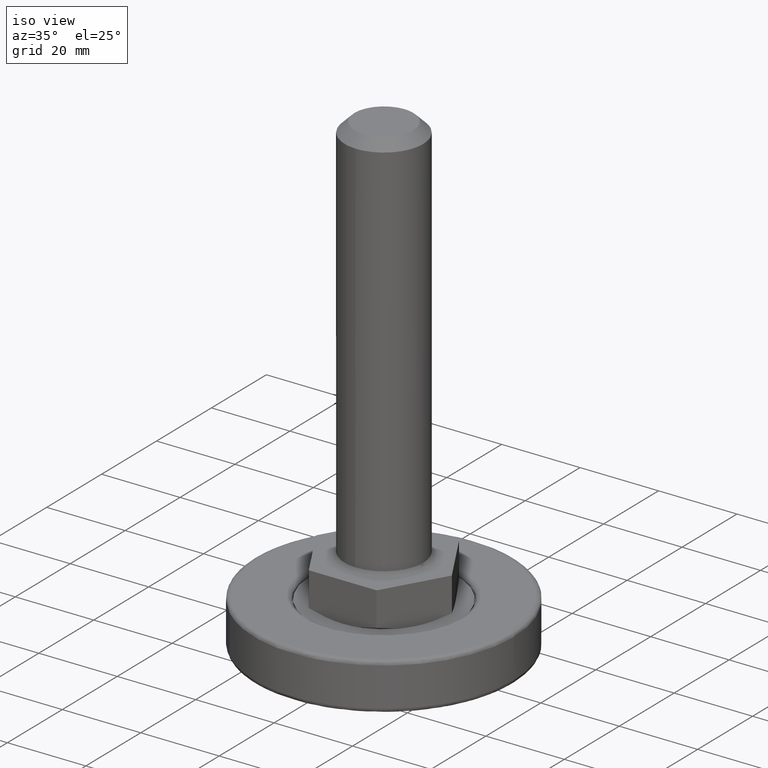
[diagram: clean part render]
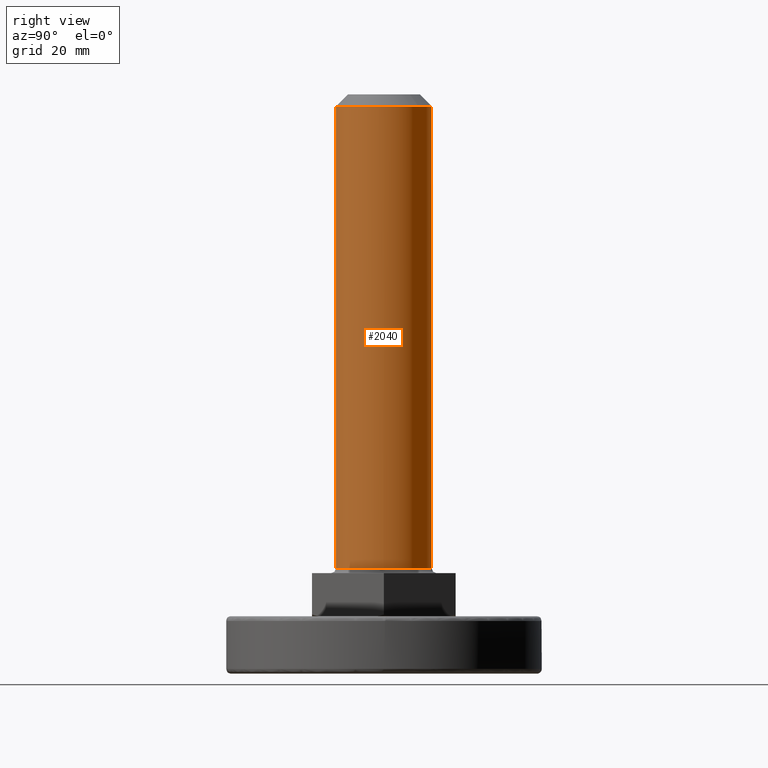
[diagram: tour spotlight — one face highlighted and labeled with its STEP entity id]
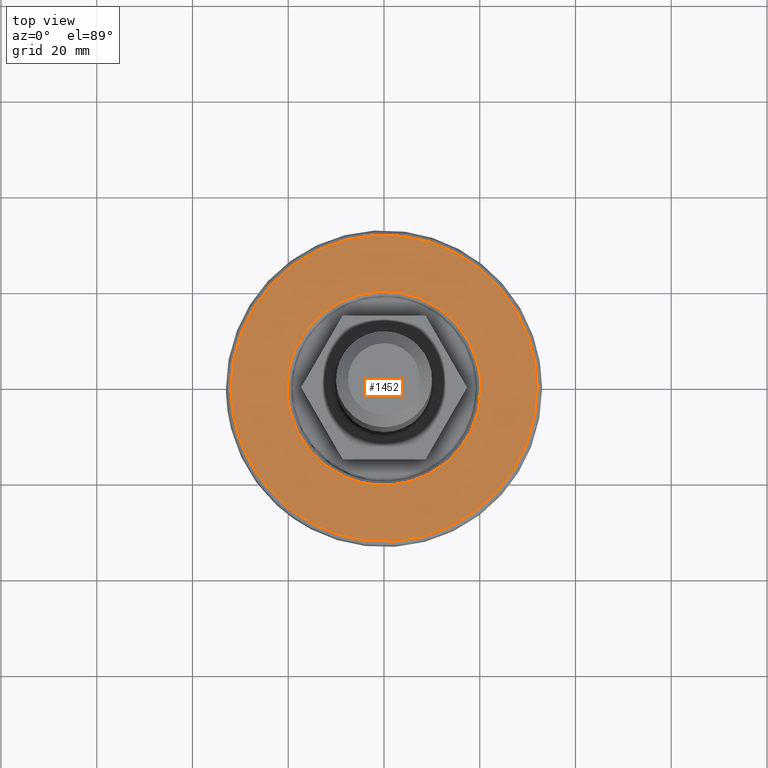
[diagram: tour spotlight — one face highlighted and labeled with its STEP entity id]
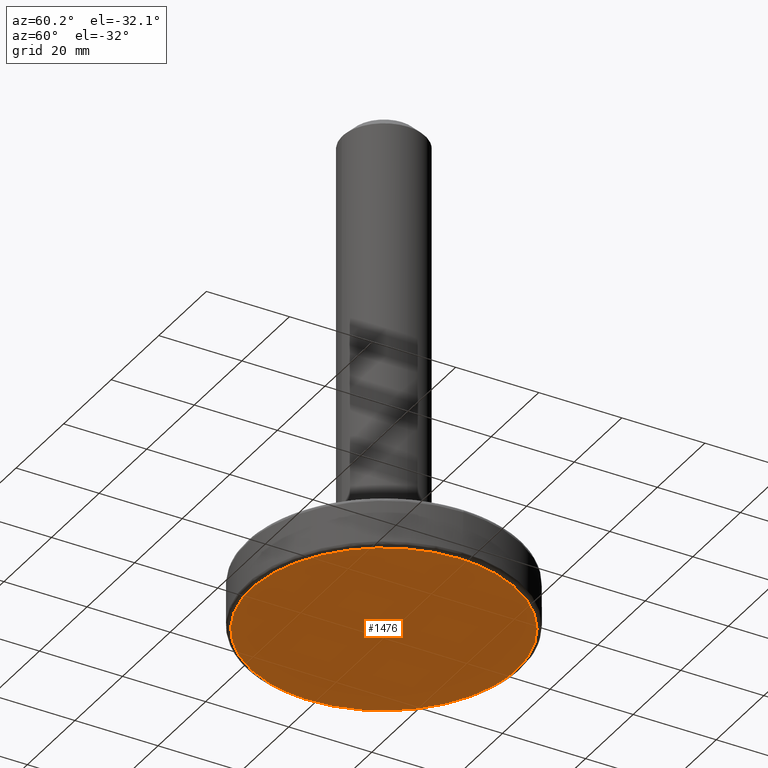
[diagram: tour spotlight — one face highlighted and labeled with its STEP entity id]
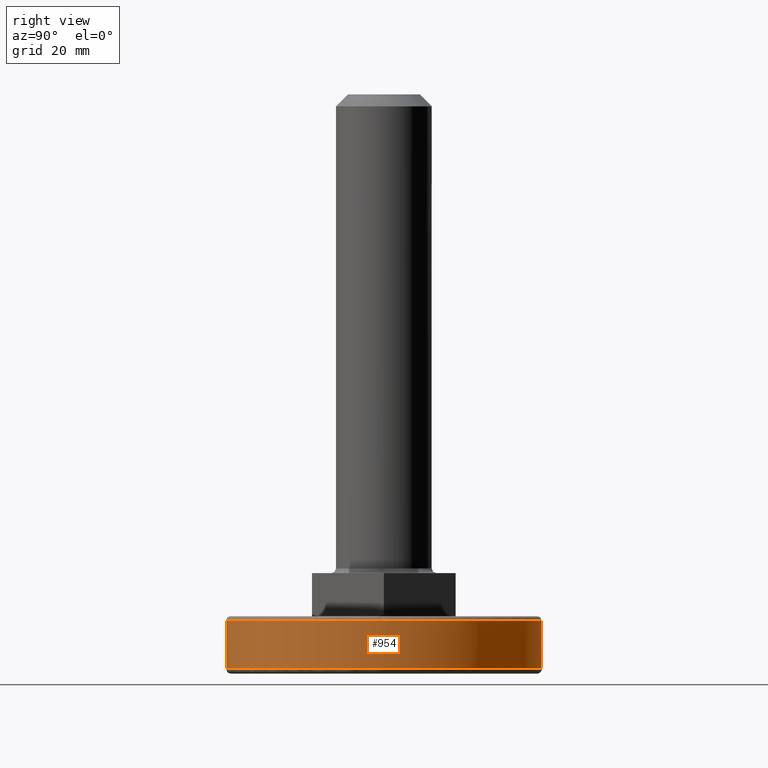
[diagram: tour spotlight — one face highlighted and labeled with its STEP entity id]
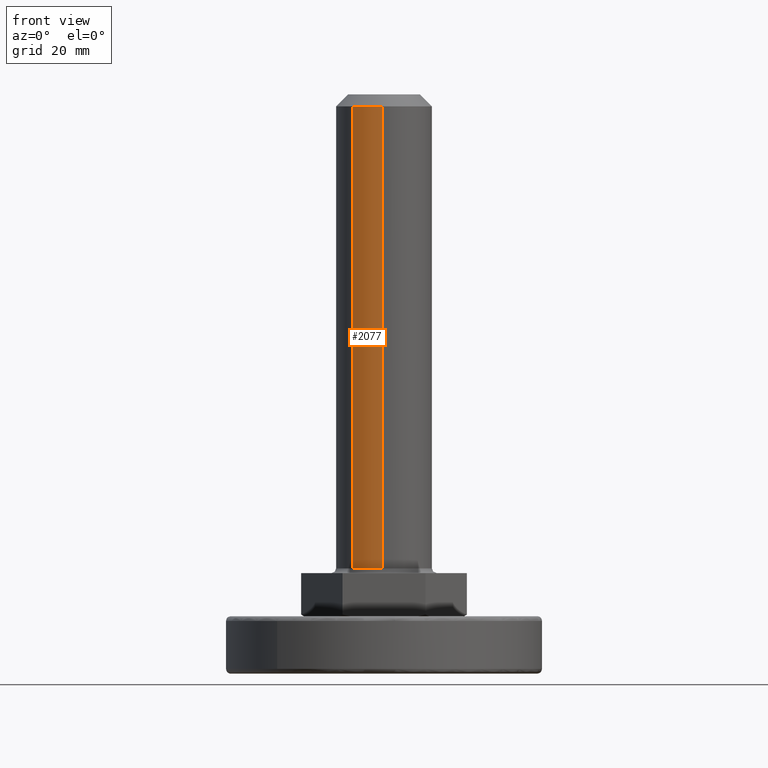
[diagram: tour spotlight — one face highlighted and labeled with its STEP entity id]
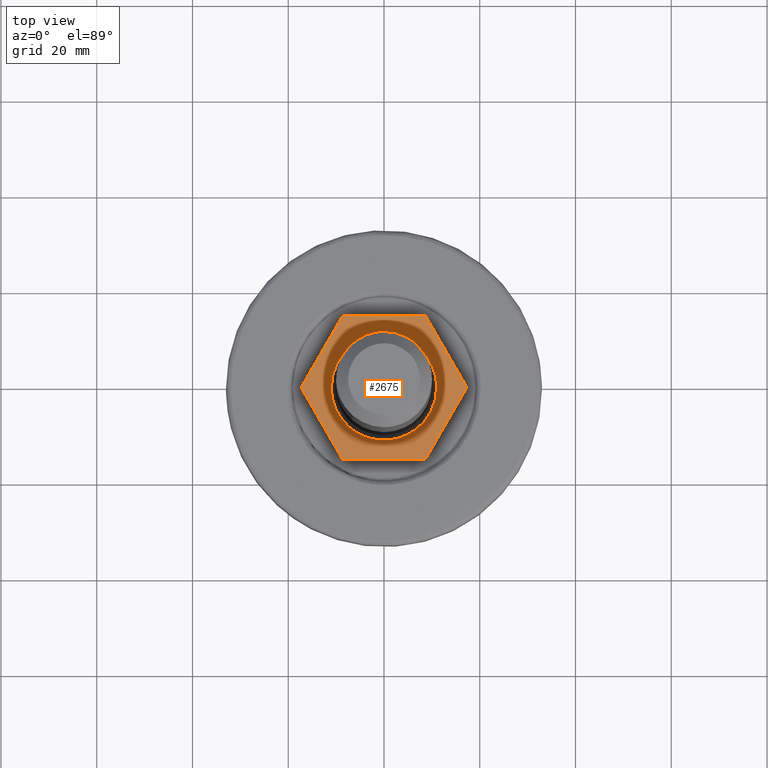
[diagram: tour spotlight — one face highlighted and labeled with its STEP entity id]
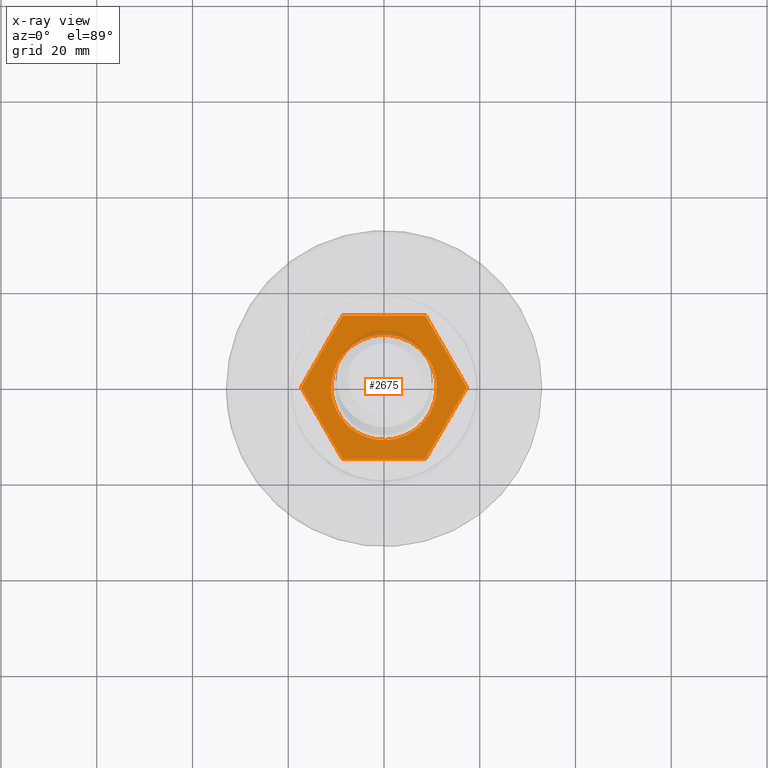
[diagram: x-ray of the same camera — body ghosted, this tour face saturated]
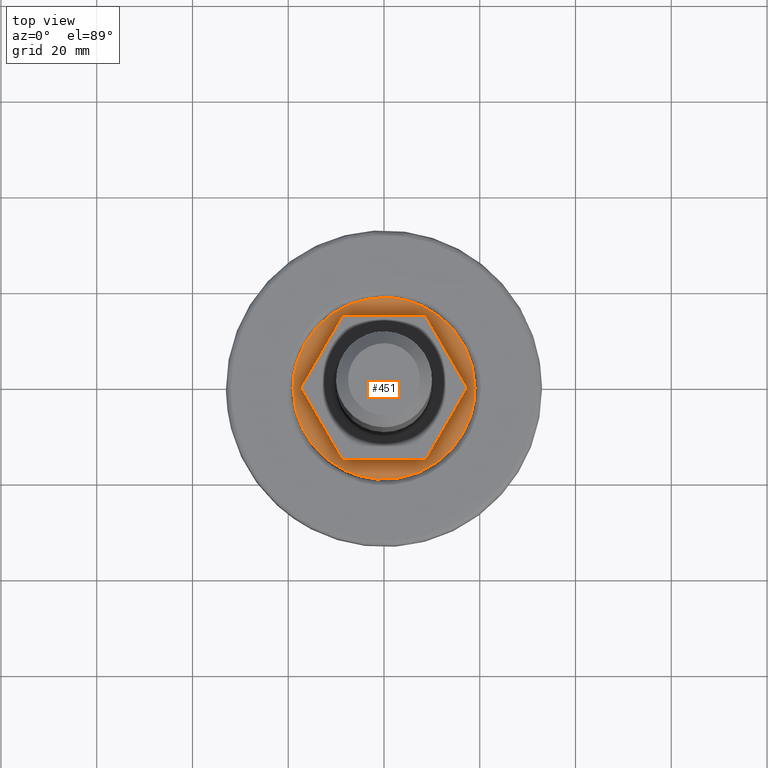
[diagram: tour spotlight — one face highlighted and labeled with its STEP entity id]
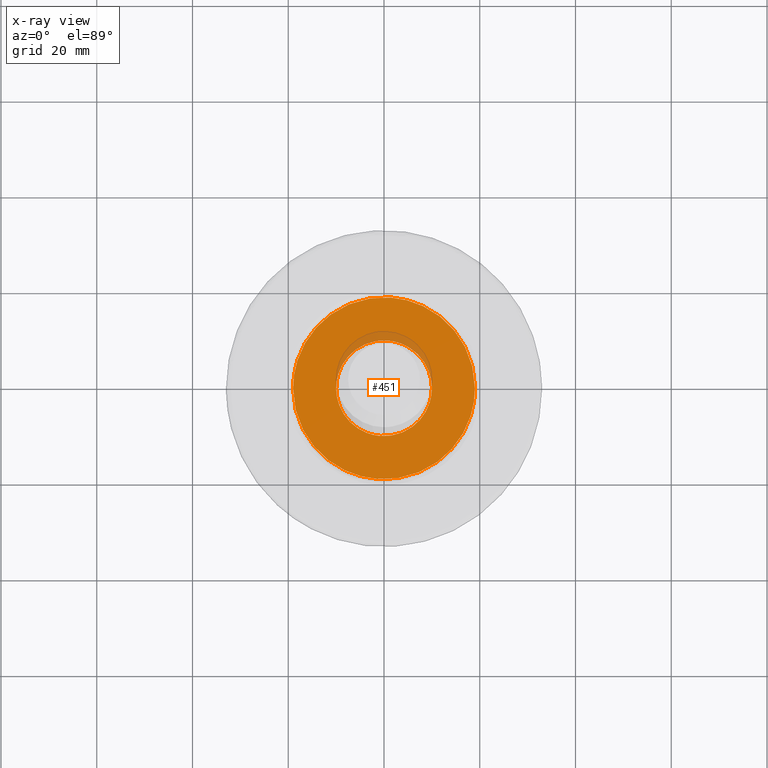
[diagram: x-ray of the same camera — body ghosted, this tour face saturated]
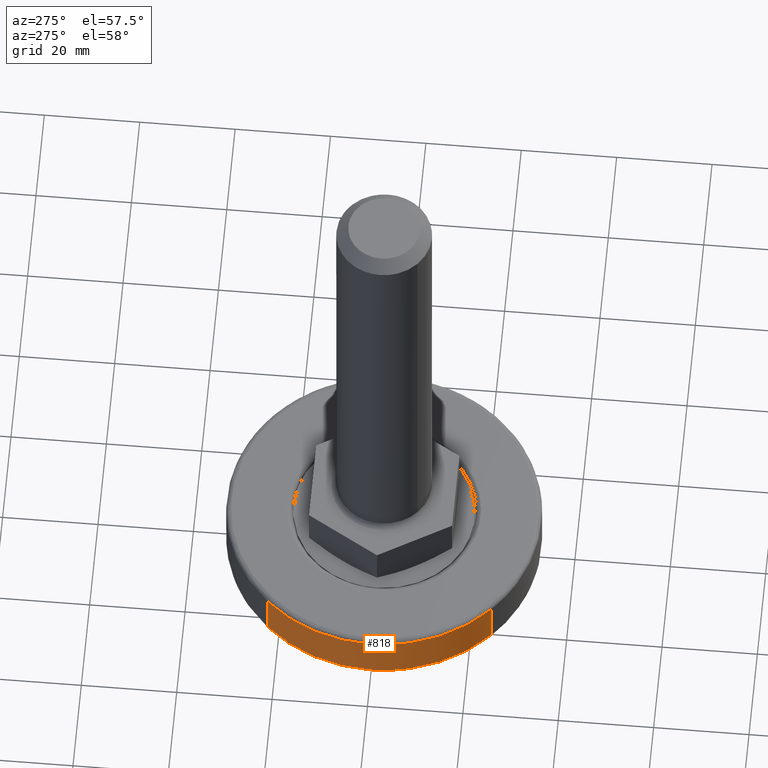
[diagram: tour spotlight — one face highlighted and labeled with its STEP entity id]
A machine part: a face-by-face anatomy tour. The part has 43 B-rep faces; the first image is the clean iso view, then the 8 largest visible faces are spotlighted one at a time (largest first), each with its STEP entity span.

Face 1 — right view, entity #2040. In plain terms, the highlighted face is a freeform B-spline surface patch.
Definition (entity closure, byte-faithful):
#1777=CARTESIAN_POINT('',(0.087265355389125,9.999619230693483,118.499999999944710));
#1778=VERTEX_POINT('',#1777);
#1784=CARTESIAN_POINT('',(-10.0,0.0,118.500000000000000));
#1785=VERTEX_POINT('',#1784);
#1786=CARTESIAN_POINT('',(-10.0,0.0,118.500000000000000));
#1787=CARTESIAN_POINT('',(-10.000000000000002,10.000000000000002,118.500000000000000));
#1788=CARTESIAN_POINT('',(0.0,10.0,118.500000000000000));
#1789=CARTESIAN_POINT('',(0.043633508611914,10.000000000000002,118.499999999999960));
#1790=CARTESIAN_POINT('',(0.087265355389125,9.999619230693483,118.499999999944730));
#1798=(BOUNDED_CURVE()B_SPLINE_CURVE(2,(#1786,#1787,#1788,#1789,#1790),.UNSPECIFIED.,.F.,.U.)B_SPLINE_CURVE_WITH_KNOTS((3,2,3),(0.500000000000000,0.750000000000000,0.751539894349251),.UNSPECIFIED.)CURVE()GEOMETRIC_REPRESENTATION_ITEM()RATIONAL_B_SPLINE_CURVE((1.0,0.707106781186548,1.0,0.998195901549661,0.996414028067396))REPRESENTATION_ITEM(''));
#1799=EDGE_CURVE('',#1785,#1778,#1798,.T.);
#1801=CARTESIAN_POINT('',(-6.535372859406683,-7.568943227989572,118.500000000000000));
#1802=VERTEX_POINT('',#1801);
#1803=CARTESIAN_POINT('',(-6.535372859406727,-7.568943227989622,118.500000000000070));
#1804=CARTESIAN_POINT('',(-10.0,-4.577425191645294,118.500000000000010));
#1805=CARTESIAN_POINT('',(-10.0,0.0,118.500000000000000));
#1813=(BOUNDED_CURVE()B_SPLINE_CURVE(2,(#1803,#1804,#1805),.UNSPECIFIED.,.F.,.U.)B_SPLINE_CURVE_WITH_KNOTS((3,3),(0.363957641356964,0.500000000000000),.UNSPECIFIED.)CURVE()GEOMETRIC_REPRESENTATION_ITEM()RATIONAL_B_SPLINE_CURVE((0.854696224171070,0.840616462728268,1.0))REPRESENTATION_ITEM(''));
#1814=EDGE_CURVE('',#1802,#1785,#1813,.T.);
#1816=CARTESIAN_POINT('',(-0.261755488294605,-9.996573616202285,118.500000000000000));
#1817=VERTEX_POINT('',#1816);
#1831=CARTESIAN_POINT('',(10.0,0.0,118.500000000000000));
#1832=VERTEX_POINT('',#1831);
#1833=CARTESIAN_POINT('',(10.0,0.0,118.500000000000000));
#1834=CARTESIAN_POINT('',(10.000000000000002,-10.000000000000002,118.500000000000000));
#1835=CARTESIAN_POINT('',(0.0,-10.0,118.500000000000000));
#1836=CARTESIAN_POINT('',(-0.130900169858422,-10.0,118.499999999999970));
#1837=CARTESIAN_POINT('',(-0.261755488294605,-9.996573616202285,118.500000000000060));
#1845=(BOUNDED_CURVE()B_SPLINE_CURVE(2,(#1833,#1834,#1835,#1836,#1837),.UNSPECIFIED.,.F.,.U.)B_SPLINE_CURVE_WITH_KNOTS((3,2,3),(0.0,0.250000000000000,0.254603061799192),.UNSPECIFIED.)CURVE()GEOMETRIC_REPRESENTATION_ITEM()RATIONAL_B_SPLINE_CURVE((1.0,0.707106781186548,1.0,0.994607177652950,0.989412943262184))REPRESENTATION_ITEM(''));
#1846=EDGE_CURVE('',#1832,#1817,#1845,.T.);
#1848=CARTESIAN_POINT('',(6.896392427850937,7.241531017753263,118.499999999999900));
#1849=VERTEX_POINT('',#1848);
#1850=CARTESIAN_POINT('',(6.896392427850937,7.241531017753262,118.499999999999940));
#1851=CARTESIAN_POINT('',(10.0,4.285844477547040,118.500000000000030));
#1852=CARTESIAN_POINT('',(10.0,0.0,118.500000000000000));
#1860=(BOUNDED_CURVE()B_SPLINE_CURVE(2,(#1850,#1851,#1852),.UNSPECIFIED.,.F.,.U.)B_SPLINE_CURVE_WITH_KNOTS((3,3),(0.871317023849989,1.0),.UNSPECIFIED.)CURVE()GEOMETRIC_REPRESENTATION_ITEM()RATIONAL_B_SPLINE_CURVE((0.853680523245746,0.849238515635715,1.0))REPRESENTATION_ITEM(''));
#1861=EDGE_CURVE('',#1849,#1832,#1860,.T.);
#1899=CARTESIAN_POINT('',(0.087265355389125,9.999619230693483,118.499999999944690));
#1900=CARTESIAN_POINT('',(4.036461148000346,9.965155120756391,118.500000000000040));
#1901=CARTESIAN_POINT('',(6.896392427850937,7.241531017753262,118.499999999999940));
#1909=(BOUNDED_CURVE()B_SPLINE_CURVE(2,(#1899,#1900,#1901),.UNSPECIFIED.,.F.,.U.)B_SPLINE_CURVE_WITH_KNOTS((3,3),(0.751539894349252,0.871317023849990),.UNSPECIFIED.)CURVE()GEOMETRIC_REPRESENTATION_ITEM()RATIONAL_B_SPLINE_CURVE((0.996414028067393,0.857815109938314,0.853680523245746))REPRESENTATION_ITEM(''));
#1910=EDGE_CURVE('',#1778,#1849,#1909,.T.);
#1916=CARTESIAN_POINT('',(-6.535373713046962,-7.568942490917386,120.912500000001460));
#1917=CARTESIAN_POINT('',(-10.120565991214493,-4.473322277251954,120.912500000001390));
#1918=CARTESIAN_POINT('',(-9.996573249755569,0.261769483078735,120.912500000001400));
#1919=CARTESIAN_POINT('',(-9.734803766676833,10.258342732834304,120.912500000001430));
#1920=CARTESIAN_POINT('',(0.261769483078735,9.996573249755569,120.912500000001400));
#1921=CARTESIAN_POINT('',(10.258342732834304,9.734803766676833,120.912500000001430));
#1922=CARTESIAN_POINT('',(9.996573249755569,-0.261769483078735,120.912500000001400));
#1923=CARTESIAN_POINT('',(9.734803766676833,-10.258342732834304,120.912500000001430));
#1924=CARTESIAN_POINT('',(-0.261769483078735,-9.996573249755569,120.912500000001400));
#1925=CARTESIAN_POINT('',(-6.535373713046962,-7.568942490917386,19.527187499942411));
#1926=CARTESIAN_POINT('',(-10.120565991214493,-4.473322277251954,19.527187499942421));
#1927=CARTESIAN_POINT('',(-9.996573249755569,0.261769483078735,19.527187499942411));
#1928=CARTESIAN_POINT('',(-9.734803766676833,10.258342732834304,19.527187499942418));
#1929=CARTESIAN_POINT('',(0.261769483078735,9.996573249755569,19.527187499942411));
#1930=CARTESIAN_POINT('',(10.258342732834304,9.734803766676833,19.527187499942418));
#1931=CARTESIAN_POINT('',(9.996573249755569,-0.261769483078735,19.527187499942411));
#1932=CARTESIAN_POINT('',(9.734803766676833,-10.258342732834304,19.527187499942418));
#1933=CARTESIAN_POINT('',(-0.261769483078735,-9.996573249755569,19.527187499942411));
#1941=(BOUNDED_SURFACE()B_SPLINE_SURFACE(2,1,((#1916,#1925),(#1917,#1926),(#1918,#1927),(#1919,#1928),(#1920,#1929),(#1921,#1930),(#1922,#1931),(#1923,#1932),(#1924,#1933)),.UNSPECIFIED.,.F.,.F.,.U.)B_SPLINE_SURFACE_WITH_KNOTS((3,2,2,2,3),(2,2),(0.0,9.278383797157327,25.846926292081129,42.415468787004933,58.984011281928723),(0.0,101.385312500059000),.UNSPECIFIED.)GEOMETRIC_REPRESENTATION_ITEM()RATIONAL_B_SPLINE_SURFACE(((0.855662221768731,0.855662221768731),(0.835979797464467,0.835979797464467),(1.0,1.0),(0.707106781186548,0.707106781186548),(1.0,1.0),(0.707106781186548,0.707106781186548),(1.0,1.0),(0.707106781186548,0.707106781186548),(1.0,1.0)))REPRESENTATION_ITEM('')SURFACE());
#1942=CARTESIAN_POINT('',(-10.0,0.0,22.0));
#1943=VERTEX_POINT('',#1942);
#1944=CARTESIAN_POINT('',(-6.535371926124537,-7.568944033827813,22.000000000000011));
#1945=VERTEX_POINT('',#1944);
#1946=CARTESIAN_POINT('',(-10.0,0.0,22.0));
#1947=CARTESIAN_POINT('',(-10.0,-4.577425937344430,22.0));
#1948=CARTESIAN_POINT('',(-6.535371926124537,-7.568944033827813,22.000000000000004));
#1956=(BOUNDED_CURVE()B_SPLINE_CURVE(2,(#1946,#1947,#1948),.UNSPECIFIED.,.F.,.U.)B_SPLINE_CURVE_WITH_KNOTS((3,3),(0.500000000000000,0.636042377273103),.UNSPECIFIED.)CURVE()GEOMETRIC_REPRESENTATION_ITEM()RATIONAL_B_SPLINE_CURVE((1.0,0.840616440901787,0.854696228027326))REPRESENTATION_ITEM(''));
#1957=EDGE_CURVE('',#1943,#1945,#1956,.T.);
#1958=ORIENTED_EDGE('',*,*,#1957,.T.);
#1959=CARTESIAN_POINT('',(-6.535372859406683,-7.568943227989572,118.500000000000000));
#1960=CARTESIAN_POINT('',(-6.535371926124537,-7.568944033827813,22.000000000000011));
#1961=QUASI_UNIFORM_CURVE('',1,(#1959,#1960),.UNSPECIFIED.,.F.,.U.);
#1962=EDGE_CURVE('',#1802,#1945,#1961,.T.);
#1963=ORIENTED_EDGE('',*,*,#1962,.F.);
#1964=ORIENTED_EDGE('',*,*,#1814,.T.);
#1965=ORIENTED_EDGE('',*,*,#1799,.T.);
#1966=ORIENTED_EDGE('',*,*,#1910,.T.);
#1967=ORIENTED_EDGE('',*,*,#1861,.T.);
#1968=ORIENTED_EDGE('',*,*,#1846,.T.);
#1969=CARTESIAN_POINT('',(-0.261751488285217,-9.996573720933409,22.000000000000039));
#1970=VERTEX_POINT('',#1969);
#1971=CARTESIAN_POINT('',(-0.261755488294605,-9.996573616202285,118.500000000000000));
#1972=CARTESIAN_POINT('',(-0.261751488285217,-9.996573720933409,22.000000000000039));
#1973=QUASI_UNIFORM_CURVE('',1,(#1971,#1972),.UNSPECIFIED.,.F.,.U.);
#1974=EDGE_CURVE('',#1817,#1970,#1973,.T.);
#1975=ORIENTED_EDGE('',*,*,#1974,.T.);
#1976=CARTESIAN_POINT('',(9.999210442038111,-0.125660398837448,21.999999999943849));
#1977=VERTEX_POINT('',#1976);
#1978=CARTESIAN_POINT('',(-0.261751488285218,-9.996573720933409,22.000000000000043));
#1979=CARTESIAN_POINT('',(-0.130898168825499,-10.000000000000002,22.0));
#1980=CARTESIAN_POINT('',(0.0,-10.0,22.0));
#1981=CARTESIAN_POINT('',(9.875119299065414,-10.000000000000002,22.000000000000004));
#1982=CARTESIAN_POINT('',(9.999210442038111,-0.125660398837447,21.999999999943856));
#1990=(BOUNDED_CURVE()B_SPLINE_CURVE(2,(#1978,#1979,#1980,#1981,#1982),.UNSPECIFIED.,.F.,.U.)B_SPLINE_CURVE_WITH_KNOTS((3,2,3),(0.745397008187015,0.750000000000000,0.997784295921591),.UNSPECIFIED.)CURVE()GEOMETRIC_REPRESENTATION_ITEM()RATIONAL_B_SPLINE_CURVE((0.989413101211341,0.994607259646891,1.0,0.709702639984401,0.994854295643696))REPRESENTATION_ITEM(''));
#1991=EDGE_CURVE('',#1970,#1977,#1990,.T.);
#1992=ORIENTED_EDGE('',*,*,#1991,.T.);
#1993=CARTESIAN_POINT('',(10.0,0.0,22.0));
#1994=VERTEX_POINT('',#1993);
#1995=CARTESIAN_POINT('',(9.999210442038111,-0.125660398837447,21.999999999943856));
#1996=CARTESIAN_POINT('',(9.999999999999998,-0.062832679922820,22.0));
#1997=CARTESIAN_POINT('',(10.0,0.0,22.0));
#2005=(BOUNDED_CURVE()B_SPLINE_CURVE(2,(#1995,#1996,#1997),.UNSPECIFIED.,.F.,.U.)B_SPLINE_CURVE_WITH_KNOTS((3,3),(0.997784295921590,1.0),.UNSPECIFIED.)CURVE()GEOMETRIC_REPRESENTATION_ITEM()RATIONAL_B_SPLINE_CURVE((0.994854295643695,0.997404141202146,1.0))REPRESENTATION_ITEM(''));
#2006=EDGE_CURVE('',#1977,#1994,#2005,.T.);
#2007=ORIENTED_EDGE('',*,*,#2006,.T.);
#2008=CARTESIAN_POINT('',(0.697332515878031,9.975656738395683,21.999999999966061));
#2009=VERTEX_POINT('',#2008);
#2010=CARTESIAN_POINT('',(10.0,0.0,22.0));
#2011=CARTESIAN_POINT('',(10.0,9.325368472434525,22.000000000000004));
#2012=CARTESIAN_POINT('',(0.697332515878031,9.975656738395683,21.999999999966061));
#2020=(BOUNDED_CURVE()B_SPLINE_CURVE(2,(#2010,#2011,#2012),.UNSPECIFIED.,.F.,.U.)B_SPLINE_CURVE_WITH_KNOTS((3,3),(0.0,0.237833686530872),.UNSPECIFIED.)CURVE()GEOMETRIC_REPRESENTATION_ITEM()RATIONAL_B_SPLINE_CURVE((1.0,0.721360504038813,0.972879876378052))REPRESENTATION_ITEM(''));
#2021=EDGE_CURVE('',#1994,#2009,#2020,.T.);
#2022=ORIENTED_EDGE('',*,*,#2021,.T.);
#2023=CARTESIAN_POINT('',(0.697332515878031,9.975656738395683,21.999999999966068));
#2024=CARTESIAN_POINT('',(0.349091158871179,9.999999999999998,21.999999999999996));
#2025=CARTESIAN_POINT('',(0.0,10.0,22.0));
#2026=CARTESIAN_POINT('',(-10.000000000000002,10.000000000000002,22.000000000000007));
#2027=CARTESIAN_POINT('',(-10.0,0.0,22.0));
#2035=(BOUNDED_CURVE()B_SPLINE_CURVE(2,(#2023,#2024,#2025,#2026,#2027),.UNSPECIFIED.,.F.,.U.)B_SPLINE_CURVE_WITH_KNOTS((3,2,3),(0.237833686530873,0.250000000000000,0.500000000000000),.UNSPECIFIED.)CURVE()GEOMETRIC_REPRESENTATION_ITEM()RATIONAL_B_SPLINE_CURVE((0.972879876378052,0.985746277147735,1.0,0.707106781186548,1.0))REPRESENTATION_ITEM(''));
#2036=EDGE_CURVE('',#2009,#1943,#2035,.T.);
#2037=ORIENTED_EDGE('',*,*,#2036,.T.);
#2038=EDGE_LOOP('',(#1958,#1963,#1964,#1965,#1966,#1967,#1968,#1975,#1992,#2007,#2022,#2037));
#2039=FACE_OUTER_BOUND('',#2038,.T.);
#2040=ADVANCED_FACE('',(#2039),#1941,.T.);

Face 2 — top view, entity #1452. In plain terms, the highlighted face is a freeform B-spline surface patch.
Definition (entity closure, byte-faithful):
#998=CARTESIAN_POINT('',(-18.533633736825561,8.158855319593272,12.0));
#999=VERTEX_POINT('',#998);
#1000=CARTESIAN_POINT('',(20.250000000000000,0.0,12.0));
#1001=VERTEX_POINT('',#1000);
#1002=CARTESIAN_POINT('',(-18.533633736825564,8.158855319593274,12.000000000000005));
#1003=CARTESIAN_POINT('',(-13.210883686410137,20.250000000000000,12.0));
#1004=CARTESIAN_POINT('',(0.0,20.250000000000000,12.0));
#1005=CARTESIAN_POINT('',(20.250000000000000,20.250000000000000,12.0));
#1006=CARTESIAN_POINT('',(20.250000000000000,0.0,12.0));
#1014=(BOUNDED_CURVE()B_SPLINE_CURVE(2,(#1002,#1003,#1004,#1005,#1006),.UNSPECIFIED.,.F.,.U.)B_SPLINE_CURVE_WITH_KNOTS((3,2,3),(0.068414990141974,0.250000000000000,0.500000000000000),.UNSPECIFIED.)CURVE()GEOMETRIC_REPRESENTATION_ITEM()RATIONAL_B_SPLINE_CURVE((0.883563120514515,0.787259927897641,1.0,0.707106781186548,1.0))REPRESENTATION_ITEM(''));
#1015=EDGE_CURVE('',#999,#1001,#1014,.T.);
#1036=CARTESIAN_POINT('',(-8.158855319700241,-18.533633737084472,12.0));
#1037=VERTEX_POINT('',#1036);
#1053=CARTESIAN_POINT('',(20.250000000000000,0.0,12.0));
#1054=CARTESIAN_POINT('',(20.250000000000000,-20.250000000000000,12.0));
#1055=CARTESIAN_POINT('',(0.0,-20.250000000000000,12.0));
#1056=CARTESIAN_POINT('',(-4.259962369369955,-20.250000000000004,11.999999999999995));
#1057=CARTESIAN_POINT('',(-8.158855319700241,-18.533633737084472,12.000000000000004));
#1065=(BOUNDED_CURVE()B_SPLINE_CURVE(2,(#1053,#1054,#1055,#1056,#1057),.UNSPECIFIED.,.F.,.U.)B_SPLINE_CURVE_WITH_KNOTS((3,2,3),(0.500000000000000,0.750000000000000,0.818414990141875),.UNSPECIFIED.)CURVE()GEOMETRIC_REPRESENTATION_ITEM()RATIONAL_B_SPLINE_CURVE((1.0,0.707106781186548,1.0,0.919846853289022,0.883563120514619))REPRESENTATION_ITEM(''));
#1066=EDGE_CURVE('',#1001,#1037,#1065,.T.);
#1094=CARTESIAN_POINT('',(-20.250000000000000,0.0,12.0));
#1095=VERTEX_POINT('',#1094);
#1096=CARTESIAN_POINT('',(-20.250000000000000,0.0,12.0));
#1097=CARTESIAN_POINT('',(-20.250000000000004,4.259962369376602,11.999999999999996));
#1098=CARTESIAN_POINT('',(-18.533633736825564,8.158855319593272,12.000000000000007));
#1106=(BOUNDED_CURVE()B_SPLINE_CURVE(2,(#1096,#1097,#1098),.UNSPECIFIED.,.F.,.U.)B_SPLINE_CURVE_WITH_KNOTS((3,3),(0.0,0.068414990141974),.UNSPECIFIED.)CURVE()GEOMETRIC_REPRESENTATION_ITEM()RATIONAL_B_SPLINE_CURVE((1.0,0.919846853288907,0.883563120514515))REPRESENTATION_ITEM(''));
#1107=EDGE_CURVE('',#1095,#999,#1106,.T.);
#1109=CARTESIAN_POINT('',(-8.158855319700241,-18.533633737084472,12.000000000000004));
#1110=CARTESIAN_POINT('',(-20.249999999999996,-13.210883686419283,12.000000000000002));
#1111=CARTESIAN_POINT('',(-20.250000000000000,0.0,12.0));
#1119=(BOUNDED_CURVE()B_SPLINE_CURVE(2,(#1109,#1110,#1111),.UNSPECIFIED.,.F.,.U.)B_SPLINE_CURVE_WITH_KNOTS((3,3),(0.818414990141875,1.0),.UNSPECIFIED.)CURVE()GEOMETRIC_REPRESENTATION_ITEM()RATIONAL_B_SPLINE_CURVE((0.883563120514620,0.787259927897525,1.0))REPRESENTATION_ITEM(''));
#1120=EDGE_CURVE('',#1037,#1095,#1119,.T.);
#1314=CARTESIAN_POINT('',(2.231464051094301,-31.922101571249112,12.0));
#1315=VERTEX_POINT('',#1314);
#1316=CARTESIAN_POINT('',(-32.0,0.0,12.0));
#1317=VERTEX_POINT('',#1316);
#1318=CARTESIAN_POINT('',(2.231464051094301,-31.922101571249105,12.000000000000004));
#1319=CARTESIAN_POINT('',(1.117091708086758,-32.000000000000007,12.000000000000005));
#1320=CARTESIAN_POINT('',(0.0,-32.0,12.0));
#1321=CARTESIAN_POINT('',(-31.999999999999996,-31.999999999999996,12.0));
#1322=CARTESIAN_POINT('',(-32.0,0.0,12.0));
#1330=(BOUNDED_CURVE()B_SPLINE_CURVE(2,(#1318,#1319,#1320,#1321,#1322),.UNSPECIFIED.,.F.,.U.)B_SPLINE_CURVE_WITH_KNOTS((3,2,3),(0.737833686534104,0.750000000000000,1.0),.UNSPECIFIED.)CURVE()GEOMETRIC_REPRESENTATION_ITEM()RATIONAL_B_SPLINE_CURVE((0.972879876384887,0.985746277151521,1.0,0.707106781186548,1.0))REPRESENTATION_ITEM(''));
#1331=EDGE_CURVE('',#1315,#1317,#1330,.T.);
#1333=CARTESIAN_POINT('',(31.997473423218690,0.402113276490496,12.0));
#1334=VERTEX_POINT('',#1333);
#1335=CARTESIAN_POINT('',(-32.0,0.0,12.0));
#1336=CARTESIAN_POINT('',(-31.999999999999996,31.999999999999996,12.0));
#1337=CARTESIAN_POINT('',(0.0,32.0,12.0));
#1338=CARTESIAN_POINT('',(31.600381756809032,32.0,12.0));
#1339=CARTESIAN_POINT('',(31.997473423218690,0.402113276490496,11.999999999999996));
#1347=(BOUNDED_CURVE()B_SPLINE_CURVE(2,(#1335,#1336,#1337,#1338,#1339),.UNSPECIFIED.,.F.,.U.)B_SPLINE_CURVE_WITH_KNOTS((3,2,3),(0.0,0.250000000000000,0.497784295920476),.UNSPECIFIED.)CURVE()GEOMETRIC_REPRESENTATION_ITEM()RATIONAL_B_SPLINE_CURVE((1.0,0.707106781186548,1.0,0.709702639985707,0.994854295641130))REPRESENTATION_ITEM(''));
#1348=EDGE_CURVE('',#1317,#1334,#1347,.T.);
#1400=CARTESIAN_POINT('',(32.0,0.0,12.0));
#1401=VERTEX_POINT('',#1400);
#1402=CARTESIAN_POINT('',(32.0,0.0,12.0));
#1403=CARTESIAN_POINT('',(32.000000000000007,-29.841179112352499,12.000000000000002));
#1404=CARTESIAN_POINT('',(2.231464051094302,-31.922101571249108,11.999999999999996));
#1412=(BOUNDED_CURVE()B_SPLINE_CURVE(2,(#1402,#1403,#1404),.UNSPECIFIED.,.F.,.U.)B_SPLINE_CURVE_WITH_KNOTS((3,3),(0.500000000000000,0.737833686534104),.UNSPECIFIED.)CURVE()GEOMETRIC_REPRESENTATION_ITEM()RATIONAL_B_SPLINE_CURVE((1.0,0.721360504035027,0.972879876384886))REPRESENTATION_ITEM(''));
#1413=EDGE_CURVE('',#1401,#1315,#1412,.T.);
#1419=CARTESIAN_POINT('',(31.997473423218690,0.402113276490496,11.999999999999996));
#1420=CARTESIAN_POINT('',(31.999999999999996,0.201064575854402,12.000000000000005));
#1421=CARTESIAN_POINT('',(32.0,0.0,12.0));
#1429=(BOUNDED_CURVE()B_SPLINE_CURVE(2,(#1419,#1420,#1421),.UNSPECIFIED.,.F.,.U.)B_SPLINE_CURVE_WITH_KNOTS((3,3),(0.497784295920476,0.500000000000000),.UNSPECIFIED.)CURVE()GEOMETRIC_REPRESENTATION_ITEM()RATIONAL_B_SPLINE_CURVE((0.994854295641130,0.997404141200840,1.0))REPRESENTATION_ITEM(''));
#1430=EDGE_CURVE('',#1334,#1401,#1429,.T.);
#1435=CARTESIAN_POINT('',(-35.196799875955577,-35.192937328681182,12.0));
#1436=CARTESIAN_POINT('',(35.196801592569351,-35.192937328681182,12.0));
#1437=CARTESIAN_POINT('',(-35.196799875955577,35.195956291521668,12.0));
#1438=CARTESIAN_POINT('',(35.196801592569351,35.195956291521668,12.0));
#1439=B_SPLINE_SURFACE_WITH_KNOTS('',1,1,((#1435,#1437),(#1436,#1438)),.UNSPECIFIED.,.F.,.F.,.U.,(2,2),(2,2),(0.0,70.393601468524935),(0.0,70.388893620202850),.UNSPECIFIED.);
#1440=ORIENTED_EDGE('',*,*,#1331,.F.);
#1441=ORIENTED_EDGE('',*,*,#1413,.F.);
#1442=ORIENTED_EDGE('',*,*,#1430,.F.);
#1443=ORIENTED_EDGE('',*,*,#1348,.F.);
#1444=EDGE_LOOP('',(#1440,#1441,#1442,#1443));
#1445=FACE_OUTER_BOUND('',#1444,.T.);
#1446=ORIENTED_EDGE('',*,*,#1066,.T.);
#1447=ORIENTED_EDGE('',*,*,#1120,.T.);
#1448=ORIENTED_EDGE('',*,*,#1107,.T.);
#1449=ORIENTED_EDGE('',*,*,#1015,.T.);
#1450=EDGE_LOOP('',(#1446,#1447,#1448,#1449));
#1451=FACE_BOUND('',#1450,.T.);
#1452=ADVANCED_FACE('',(#1445,#1451),#1439,.T.);

Face 3 — auxiliary view, entity #1476. In plain terms, the highlighted face is a freeform B-spline surface patch.
Definition (entity closure, byte-faithful):
#1158=CARTESIAN_POINT('',(-0.804163054886223,31.989894073866001,4.685749E-016));
#1159=VERTEX_POINT('',#1158);
#1160=CARTESIAN_POINT('',(32.0,0.0,0.0));
#1161=VERTEX_POINT('',#1160);
#1162=CARTESIAN_POINT('',(-0.804163054886223,31.989894073865997,4.685749E-016));
#1163=CARTESIAN_POINT('',(-0.402145028225196,32.0,0.0));
#1164=CARTESIAN_POINT('',(0.0,32.0,0.0));
#1165=CARTESIAN_POINT('',(31.999999999999996,31.999999999999996,0.0));
#1166=CARTESIAN_POINT('',(32.0,0.0,0.0));
#1174=(BOUNDED_CURVE()B_SPLINE_CURVE(2,(#1162,#1163,#1164,#1165,#1166),.UNSPECIFIED.,.F.,.U.)B_SPLINE_CURVE_WITH_KNOTS((3,2,3),(0.245579891766778,0.250000000000000,0.500000000000000),.UNSPECIFIED.)CURVE()GEOMETRIC_REPRESENTATION_ITEM()RATIONAL_B_SPLINE_CURVE((0.989826157674729,0.994821521088271,1.0,0.707106781186548,1.0))REPRESENTATION_ITEM(''));
#1175=EDGE_CURVE('',#1159,#1161,#1174,.T.);
#1193=CARTESIAN_POINT('',(-31.989894073201690,-0.804163054856082,4.373365E-016));
#1194=VERTEX_POINT('',#1193);
#1208=CARTESIAN_POINT('',(32.0,0.0,0.0));
#1209=CARTESIAN_POINT('',(31.999999999999996,-31.999999999999996,0.0));
#1210=CARTESIAN_POINT('',(0.0,-32.0,0.0));
#1211=CARTESIAN_POINT('',(-31.205692037266367,-32.0,0.0));
#1212=CARTESIAN_POINT('',(-31.989894073201693,-0.804163054856082,4.373365E-016));
#1220=(BOUNDED_CURVE()B_SPLINE_CURVE(2,(#1208,#1209,#1210,#1211,#1212),.UNSPECIFIED.,.F.,.U.)B_SPLINE_CURVE_WITH_KNOTS((3,2,3),(0.500000000000000,0.750000000000000,0.995579891766924),.UNSPECIFIED.)CURVE()GEOMETRIC_REPRESENTATION_ITEM()RATIONAL_B_SPLINE_CURVE((1.0,0.707106781186548,1.0,0.712285260098105,0.989826157675059))REPRESENTATION_ITEM(''));
#1221=EDGE_CURVE('',#1161,#1194,#1220,.T.);
#1243=CARTESIAN_POINT('',(-32.0,0.0,0.0));
#1244=VERTEX_POINT('',#1243);
#1245=CARTESIAN_POINT('',(-32.0,0.0,0.0));
#1246=CARTESIAN_POINT('',(-32.0,31.205692037240368,0.0));
#1247=CARTESIAN_POINT('',(-0.804163054886223,31.989894073866001,4.685749E-016));
#1255=(BOUNDED_CURVE()B_SPLINE_CURVE(2,(#1245,#1246,#1247),.UNSPECIFIED.,.F.,.U.)B_SPLINE_CURVE_WITH_KNOTS((3,3),(0.0,0.245579891766778),.UNSPECIFIED.)CURVE()GEOMETRIC_REPRESENTATION_ITEM()RATIONAL_B_SPLINE_CURVE((1.0,0.712285260098276,0.989826157674729))REPRESENTATION_ITEM(''));
#1256=EDGE_CURVE('',#1244,#1159,#1255,.T.);
#1258=CARTESIAN_POINT('',(-31.989894073201686,-0.804163054856082,4.373365E-016));
#1259=CARTESIAN_POINT('',(-32.000000000000007,-0.402145028211760,0.0));
#1260=CARTESIAN_POINT('',(-32.0,0.0,0.0));
#1268=(BOUNDED_CURVE()B_SPLINE_CURVE(2,(#1258,#1259,#1260),.UNSPECIFIED.,.F.,.U.)B_SPLINE_CURVE_WITH_KNOTS((3,3),(0.995579891766925,1.0),.UNSPECIFIED.)CURVE()GEOMETRIC_REPRESENTATION_ITEM()RATIONAL_B_SPLINE_CURVE((0.989826157675061,0.994821521088443,1.0))REPRESENTATION_ITEM(''));
#1269=EDGE_CURVE('',#1194,#1244,#1268,.T.);
#1465=CARTESIAN_POINT('',(35.196799875955577,-35.193644055048743,0.0));
#1466=CARTESIAN_POINT('',(-35.196801592569351,-35.193644055048743,0.0));
#1467=CARTESIAN_POINT('',(35.196799875955577,35.186064755824411,0.0));
#1468=CARTESIAN_POINT('',(-35.196801592569351,35.186064755824411,0.0));
#1469=B_SPLINE_SURFACE_WITH_KNOTS('',1,1,((#1465,#1467),(#1466,#1468)),.UNSPECIFIED.,.F.,.F.,.U.,(2,2),(2,2),(0.0,70.393601468524935),(0.0,70.379708810873154),.UNSPECIFIED.);
#1470=ORIENTED_EDGE('',*,*,#1256,.T.);
#1471=ORIENTED_EDGE('',*,*,#1175,.T.);
#1472=ORIENTED_EDGE('',*,*,#1221,.T.);
#1473=ORIENTED_EDGE('',*,*,#1269,.T.);
#1474=EDGE_LOOP('',(#1470,#1471,#1472,#1473));
#1475=FACE_OUTER_BOUND('',#1474,.T.);
#1476=ADVANCED_FACE('',(#1475),#1469,.T.);

Face 4 — right view, entity #954. In plain terms, the highlighted face is a freeform B-spline surface patch.
Definition (entity closure, byte-faithful):
#727=CARTESIAN_POINT('',(-22.294475595580401,-24.330153265400490,0.999999999959851));
#728=VERTEX_POINT('',#727);
#744=CARTESIAN_POINT('',(-22.294476285725128,-24.330152633003340,11.0));
#745=VERTEX_POINT('',#744);
#746=CARTESIAN_POINT('',(-22.294476285725128,-24.330152633003340,11.0));
#747=CARTESIAN_POINT('',(-22.294475595580401,-24.330153265400490,0.999999999959851));
#748=QUASI_UNIFORM_CURVE('',1,(#746,#747),.UNSPECIFIED.,.F.,.U.);
#749=EDGE_CURVE('',#745,#728,#748,.T.);
#766=CARTESIAN_POINT('',(-24.330152633003340,22.294476285725128,11.0));
#767=VERTEX_POINT('',#766);
#781=CARTESIAN_POINT('',(-24.330152706945071,22.294476205027330,0.999999999959857));
#782=VERTEX_POINT('',#781);
#783=CARTESIAN_POINT('',(-24.330152633003340,22.294476285725128,11.0));
#784=CARTESIAN_POINT('',(-24.330152706945071,22.294476205027330,0.999999999959857));
#785=QUASI_UNIFORM_CURVE('',1,(#783,#784),.UNSPECIFIED.,.F.,.U.);
#786=EDGE_CURVE('',#767,#782,#785,.T.);
#819=CARTESIAN_POINT('',(-24.330152114734080,22.294476851316791,11.250000001026130));
#820=CARTESIAN_POINT('',(-2.035675263417292,46.624628966050885,11.250000001026127));
#821=CARTESIAN_POINT('',(22.294476851316791,24.330152114734080,11.250000001026130));
#822=CARTESIAN_POINT('',(46.624628966050885,2.035675263417292,11.250000001026127));
#823=CARTESIAN_POINT('',(24.330152114734080,-22.294476851316791,11.250000001026130));
#824=CARTESIAN_POINT('',(2.035675263417292,-46.624628966050885,11.250000001026127));
#825=CARTESIAN_POINT('',(-22.294476851316791,-24.330152114734080,11.250000001026130));
#826=CARTESIAN_POINT('',(-24.330152114734080,22.294476851316791,0.743749999821700));
#827=CARTESIAN_POINT('',(-2.035675263417292,46.624628966050885,0.743749999821700));
#828=CARTESIAN_POINT('',(22.294476851316791,24.330152114734080,0.743749999821700));
#829=CARTESIAN_POINT('',(46.624628966050885,2.035675263417292,0.743749999821700));
#830=CARTESIAN_POINT('',(24.330152114734080,-22.294476851316791,0.743749999821700));
#831=CARTESIAN_POINT('',(2.035675263417292,-46.624628966050885,0.743749999821700));
#832=CARTESIAN_POINT('',(-22.294476851316791,-24.330152114734080,0.743749999821700));
#840=(BOUNDED_SURFACE()B_SPLINE_SURFACE(2,1,((#819,#826),(#820,#827),(#821,#828),(#822,#829),(#823,#830),(#824,#831),(#825,#832)),.UNSPECIFIED.,.F.,.F.,.U.)B_SPLINE_SURFACE_WITH_KNOTS((3,2,2,3),(2,2),(0.0,54.676190233248548,109.352380466497100,164.028570699745590),(0.0,10.506250001204430),.UNSPECIFIED.)GEOMETRIC_REPRESENTATION_ITEM()RATIONAL_B_SPLINE_SURFACE(((1.0,1.0),(0.707106781186548,0.707106781186548),(1.0,1.0),(0.707106781186548,0.707106781186548),(1.0,1.0),(0.707106781186548,0.707106781186548),(1.0,1.0)))REPRESENTATION_ITEM('')SURFACE());
#841=CARTESIAN_POINT('',(33.0,0.0,1.0));
#842=VERTEX_POINT('',#841);
#843=CARTESIAN_POINT('',(33.0,0.0,1.0));
#844=CARTESIAN_POINT('',(33.0,-33.0,1.0));
#845=CARTESIAN_POINT('',(0.0,-33.0,1.0));
#846=CARTESIAN_POINT('',(-12.832997170758027,-32.999999999999986,1.0));
#847=CARTESIAN_POINT('',(-22.294475595580398,-24.330153265400494,0.999999999959851));
#855=(BOUNDED_CURVE()B_SPLINE_CURVE(2,(#843,#844,#845,#846,#847),.UNSPECIFIED.,.F.,.U.)B_SPLINE_CURVE_WITH_KNOTS((3,2,3),(0.500000000000000,0.750000000000000,0.868415201292648),.UNSPECIFIED.)CURVE()GEOMETRIC_REPRESENTATION_ITEM()RATIONAL_B_SPLINE_CURVE((1.0,0.707106781186548,1.0,0.861267962147813,0.853959781799675))REPRESENTATION_ITEM(''));
#856=EDGE_CURVE('',#842,#728,#855,.T.);
#857=ORIENTED_EDGE('',*,*,#856,.F.);
#858=CARTESIAN_POINT('',(-0.829293149661811,32.989578246348103,0.999999999851078));
#859=VERTEX_POINT('',#858);
#860=CARTESIAN_POINT('',(-0.829293149661811,32.989578246348096,0.999999999851078));
#861=CARTESIAN_POINT('',(-0.414712060103215,33.0,1.0));
#862=CARTESIAN_POINT('',(0.0,33.0,1.0));
#863=CARTESIAN_POINT('',(33.0,33.0,1.0));
#864=CARTESIAN_POINT('',(33.0,0.0,1.0));
#872=(BOUNDED_CURVE()B_SPLINE_CURVE(2,(#860,#861,#862,#863,#864),.UNSPECIFIED.,.F.,.U.)B_SPLINE_CURVE_WITH_KNOTS((3,2,3),(0.245579891769472,0.250000000000000,0.500000000000000),.UNSPECIFIED.)CURVE()GEOMETRIC_REPRESENTATION_ITEM()RATIONAL_B_SPLINE_CURVE((0.989826157680817,0.994821521091427,1.0,0.707106781186548,1.0))REPRESENTATION_ITEM(''));
#873=EDGE_CURVE('',#859,#842,#872,.T.);
#874=ORIENTED_EDGE('',*,*,#873,.F.);
#875=CARTESIAN_POINT('',(-24.330152706945075,22.294476205027326,0.999999999959857));
#876=CARTESIAN_POINT('',(-14.852929467859880,32.637051595487925,0.999999999915995));
#877=CARTESIAN_POINT('',(-0.829293149661811,32.989578246348096,0.999999999851078));
#885=(BOUNDED_CURVE()B_SPLINE_CURVE(2,(#875,#876,#877),.UNSPECIFIED.,.F.,.U.)B_SPLINE_CURVE_WITH_KNOTS((3,3),(0.118415201064065,0.245579891769472),.UNSPECIFIED.)CURVE()GEOMETRIC_REPRESENTATION_ITEM()RATIONAL_B_SPLINE_CURVE((0.853959781827889,0.846111612710188,0.989826157680817))REPRESENTATION_ITEM(''));
#886=EDGE_CURVE('',#782,#859,#885,.T.);
#887=ORIENTED_EDGE('',*,*,#886,.F.);
#888=ORIENTED_EDGE('',*,*,#786,.F.);
#889=CARTESIAN_POINT('',(32.997394458725807,0.414679316160577,11.000000000972150));
#890=VERTEX_POINT('',#889);
#891=CARTESIAN_POINT('',(-24.330152633003337,22.294476285725128,11.0));
#892=CARTESIAN_POINT('',(-14.520348435090618,33.000000000000007,11.0));
#893=CARTESIAN_POINT('',(0.0,33.0,11.0));
#894=CARTESIAN_POINT('',(32.587893686921674,33.0,11.0));
#895=CARTESIAN_POINT('',(32.997394458725807,0.414679316160577,11.000000000972145));
#903=(BOUNDED_CURVE()B_SPLINE_CURVE(2,(#891,#892,#893,#894,#895),.UNSPECIFIED.,.F.,.U.)B_SPLINE_CURVE_WITH_KNOTS((3,2,3),(0.118415202065470,0.250000000000000,0.497784295921622),.UNSPECIFIED.)CURVE()GEOMETRIC_REPRESENTATION_ITEM()RATIONAL_B_SPLINE_CURVE((0.853959781704283,0.845838819944151,1.0,0.709702639984365,0.994854295643768))REPRESENTATION_ITEM(''));
#904=EDGE_CURVE('',#767,#890,#903,.T.);
#905=ORIENTED_EDGE('',*,*,#904,.T.);
#906=CARTESIAN_POINT('',(33.0,0.0,11.0));
#907=VERTEX_POINT('',#906);
#908=CARTESIAN_POINT('',(32.997394458725807,0.414679316160577,11.000000000972152));
#909=CARTESIAN_POINT('',(33.000000000000007,0.207347843742316,11.000000000000005));
#910=CARTESIAN_POINT('',(33.0,0.0,11.0));
#918=(BOUNDED_CURVE()B_SPLINE_CURVE(2,(#908,#909,#910),.UNSPECIFIED.,.F.,.U.)B_SPLINE_CURVE_WITH_KNOTS((3,3),(0.497784295921622,0.500000000000000),.UNSPECIFIED.)CURVE()GEOMETRIC_REPRESENTATION_ITEM()RATIONAL_B_SPLINE_CURVE((0.994854295643768,0.997404141202183,1.0))REPRESENTATION_ITEM(''));
#919=EDGE_CURVE('',#890,#907,#918,.T.);
#920=ORIENTED_EDGE('',*,*,#919,.T.);
#921=CARTESIAN_POINT('',(2.301197302018221,-32.919667236732273,11.000000000997471));
#922=VERTEX_POINT('',#921);
#923=CARTESIAN_POINT('',(33.0,0.0,11.0));
#924=CARTESIAN_POINT('',(33.000000000000007,-30.773715959744941,11.0));
#925=CARTESIAN_POINT('',(2.301197302018221,-32.919667236732273,11.000000000997469));
#933=(BOUNDED_CURVE()B_SPLINE_CURVE(2,(#923,#924,#925),.UNSPECIFIED.,.F.,.U.)B_SPLINE_CURVE_WITH_KNOTS((3,3),(0.500000000000000,0.737833686534836),.UNSPECIFIED.)CURVE()GEOMETRIC_REPRESENTATION_ITEM()RATIONAL_B_SPLINE_CURVE((1.0,0.721360504034169,0.972879876386436))REPRESENTATION_ITEM(''));
#934=EDGE_CURVE('',#907,#922,#933,.T.);
#935=ORIENTED_EDGE('',*,*,#934,.T.);
#936=CARTESIAN_POINT('',(2.301197302018220,-32.919667236732273,11.000000000997471));
#937=CARTESIAN_POINT('',(1.152000823894233,-33.0,11.000000000000004));
#938=CARTESIAN_POINT('',(0.0,-33.0,11.0));
#939=CARTESIAN_POINT('',(-12.832997268001733,-33.000000000000007,11.0));
#940=CARTESIAN_POINT('',(-22.294476285725136,-24.330152633003333,11.0));
#948=(BOUNDED_CURVE()B_SPLINE_CURVE(2,(#936,#937,#938,#939,#940),.UNSPECIFIED.,.F.,.U.)B_SPLINE_CURVE_WITH_KNOTS((3,2,3),(0.737833686534835,0.750000000000000,0.868415202065470),.UNSPECIFIED.)CURVE()GEOMETRIC_REPRESENTATION_ITEM()RATIONAL_B_SPLINE_CURVE((0.972879876386434,0.985746277152378,1.0,0.861267961242397,0.853959781704283))REPRESENTATION_ITEM(''));
#949=EDGE_CURVE('',#922,#745,#948,.T.);
#950=ORIENTED_EDGE('',*,*,#949,.T.);
#951=ORIENTED_EDGE('',*,*,#749,.T.);
#952=EDGE_LOOP('',(#857,#874,#887,#888,#905,#920,#935,#950,#951));
#953=FACE_OUTER_BOUND('',#952,.T.);
#954=ADVANCED_FACE('',(#953),#840,.T.);

Face 5 — front view, entity #2077. In plain terms, the highlighted face is a freeform B-spline surface patch.
Definition (entity closure, byte-faithful):
#1801=CARTESIAN_POINT('',(-6.535372859406683,-7.568943227989572,118.500000000000000));
#1802=VERTEX_POINT('',#1801);
#1816=CARTESIAN_POINT('',(-0.261755488294605,-9.996573616202285,118.500000000000000));
#1817=VERTEX_POINT('',#1816);
#1818=CARTESIAN_POINT('',(-0.261755488294605,-9.996573616202285,118.500000000000060));
#1819=CARTESIAN_POINT('',(-3.832084699015951,-9.903086257262403,118.499999999999960));
#1820=CARTESIAN_POINT('',(-6.535372859406727,-7.568943227989622,118.500000000000070));
#1828=(BOUNDED_CURVE()B_SPLINE_CURVE(2,(#1818,#1819,#1820),.UNSPECIFIED.,.F.,.U.)B_SPLINE_CURVE_WITH_KNOTS((3,3),(0.254603061799192,0.363957641356964),.UNSPECIFIED.)CURVE()GEOMETRIC_REPRESENTATION_ITEM()RATIONAL_B_SPLINE_CURVE((0.989412943262184,0.866013922630645,0.854696224171070))REPRESENTATION_ITEM(''));
#1829=EDGE_CURVE('',#1817,#1802,#1828,.T.);
#1944=CARTESIAN_POINT('',(-6.535371926124537,-7.568944033827813,22.000000000000011));
#1945=VERTEX_POINT('',#1944);
#1959=CARTESIAN_POINT('',(-6.535372859406683,-7.568943227989572,118.500000000000000));
#1960=CARTESIAN_POINT('',(-6.535371926124537,-7.568944033827813,22.000000000000011));
#1961=QUASI_UNIFORM_CURVE('',1,(#1959,#1960),.UNSPECIFIED.,.F.,.U.);
#1962=EDGE_CURVE('',#1802,#1945,#1961,.T.);
#1969=CARTESIAN_POINT('',(-0.261751488285217,-9.996573720933409,22.000000000000039));
#1970=VERTEX_POINT('',#1969);
#1971=CARTESIAN_POINT('',(-0.261755488294605,-9.996573616202285,118.500000000000000));
#1972=CARTESIAN_POINT('',(-0.261751488285217,-9.996573720933409,22.000000000000039));
#1973=QUASI_UNIFORM_CURVE('',1,(#1971,#1972),.UNSPECIFIED.,.F.,.U.);
#1974=EDGE_CURVE('',#1817,#1970,#1973,.T.);
#2041=CARTESIAN_POINT('',(-0.230689444069790,-9.997387109219430,120.912500000001440));
#2042=CARTESIAN_POINT('',(-0.246219450763288,-9.996980441682183,120.912500000001420));
#2043=CARTESIAN_POINT('',(-3.832091308565374,-9.903081082456618,120.912500000001490));
#2044=CARTESIAN_POINT('',(-6.549135267268841,-7.557060130888853,120.912500000001470));
#2045=CARTESIAN_POINT('',(-6.562899309056492,-7.545175622981409,120.912500000001390));
#2046=CARTESIAN_POINT('',(-0.230689444069790,-9.997387109219430,19.527187499942421));
#2047=CARTESIAN_POINT('',(-0.246219450763288,-9.996980441682183,19.527187499942418));
#2048=CARTESIAN_POINT('',(-3.832091308565374,-9.903081082456618,19.527187499942414));
#2049=CARTESIAN_POINT('',(-6.549135267268841,-7.557060130888853,19.527187499942414));
#2050=CARTESIAN_POINT('',(-6.562899309056492,-7.545175622981409,19.527187499942411));
#2058=(BOUNDED_SURFACE()B_SPLINE_SURFACE(2,1,((#2041,#2046),(#2042,#2047),(#2043,#2048),(#2044,#2049),(#2045,#2050)),.UNSPECIFIED.,.F.,.F.,.U.)B_SPLINE_SURFACE_WITH_KNOTS((3,1,1,3),(2,2),(0.0,0.036395248693533,7.311216219594532,7.347589294992801),(0.0,101.385312500059000),.UNSPECIFIED.)GEOMETRIC_REPRESENTATION_ITEM()RATIONAL_B_SPLINE_SURFACE(((1.001289479286454,1.001289479286454),(1.000644739643227,1.000644739643227),(0.871126983722081,0.871126983722081),(0.855584900147375,0.855584900147375),(0.855507578526019,0.855507578526019)))REPRESENTATION_ITEM('')SURFACE());
#2059=CARTESIAN_POINT('',(-6.535371926124537,-7.568944033827813,22.000000000000004));
#2060=CARTESIAN_POINT('',(-3.832082296613610,-9.903087749771958,22.0));
#2061=CARTESIAN_POINT('',(-0.261751488285218,-9.996573720933409,22.000000000000043));
#2069=(BOUNDED_CURVE()B_SPLINE_CURVE(2,(#2059,#2060,#2061),.UNSPECIFIED.,.F.,.U.)B_SPLINE_CURVE_WITH_KNOTS((3,3),(0.636042377273103,0.745397008187015),.UNSPECIFIED.)CURVE()GEOMETRIC_REPRESENTATION_ITEM()RATIONAL_B_SPLINE_CURVE((0.854696228027326,0.866013950896641,0.989413101211341))REPRESENTATION_ITEM(''));
#2070=EDGE_CURVE('',#1945,#1970,#2069,.T.);
#2071=ORIENTED_EDGE('',*,*,#2070,.T.);
#2072=ORIENTED_EDGE('',*,*,#1974,.F.);
#2073=ORIENTED_EDGE('',*,*,#1829,.T.);
#2074=ORIENTED_EDGE('',*,*,#1962,.T.);
#2075=EDGE_LOOP('',(#2071,#2072,#2073,#2074));
#2076=FACE_OUTER_BOUND('',#2075,.T.);
#2077=ADVANCED_FACE('',(#2076),#2058,.T.);

Face 6 — top view, entity #2675. An x-ray twin of the same camera follows (body ghosted, this face saturated) — the face is partly hidden behind the body. In plain terms, the highlighted face is a freeform B-spline surface patch.
Definition (entity closure, byte-faithful):
#2113=CARTESIAN_POINT('',(-11.0,0.0,21.0));
#2114=VERTEX_POINT('',#2113);
#2115=CARTESIAN_POINT('',(0.767065767406444,10.973222411035200,21.0));
#2116=VERTEX_POINT('',#2115);
#2117=CARTESIAN_POINT('',(-11.0,0.0,21.0));
#2118=CARTESIAN_POINT('',(-11.0,11.0,21.000000000000004));
#2119=CARTESIAN_POINT('',(0.0,11.0,21.0));
#2120=CARTESIAN_POINT('',(0.384000274782757,11.0,21.0));
#2121=CARTESIAN_POINT('',(0.767065767406444,10.973222411035195,20.999999999999993));
#2129=(BOUNDED_CURVE()B_SPLINE_CURVE(2,(#2117,#2118,#2119,#2120,#2121),.UNSPECIFIED.,.F.,.U.)B_SPLINE_CURVE_WITH_KNOTS((3,2,3),(0.500000000000000,0.750000000000000,0.762166313469892),.UNSPECIFIED.)CURVE()GEOMETRIC_REPRESENTATION_ITEM()RATIONAL_B_SPLINE_CURVE((1.0,0.707106781186548,1.0,0.985746277146840,0.972879876376436))REPRESENTATION_ITEM(''));
#2130=EDGE_CURVE('',#2114,#2116,#2129,.T.);
#2132=CARTESIAN_POINT('',(10.999131486182559,-0.138226438712376,21.0));
#2133=VERTEX_POINT('',#2132);
#2134=CARTESIAN_POINT('',(10.999131486182561,-0.138226438712376,20.999999999999996));
#2135=CARTESIAN_POINT('',(10.862631228987874,-11.0,21.000000000000004));
#2136=CARTESIAN_POINT('',(0.0,-11.0,21.0));
#2137=CARTESIAN_POINT('',(-11.0,-11.0,21.000000000000004));
#2138=CARTESIAN_POINT('',(-11.0,0.0,21.0));
#2146=(BOUNDED_CURVE()B_SPLINE_CURVE(2,(#2134,#2135,#2136,#2137,#2138),.UNSPECIFIED.,.F.,.U.)B_SPLINE_CURVE_WITH_KNOTS((3,2,3),(0.002215704078152,0.250000000000000,0.500000000000000),.UNSPECIFIED.)CURVE()GEOMETRIC_REPRESENTATION_ITEM()RATIONAL_B_SPLINE_CURVE((0.994854295644289,0.709702639984099,1.0,0.707106781186548,1.0))REPRESENTATION_ITEM(''));
#2147=EDGE_CURVE('',#2133,#2114,#2146,.T.);
#2199=CARTESIAN_POINT('',(11.0,0.0,21.0));
#2200=VERTEX_POINT('',#2199);
#2201=CARTESIAN_POINT('',(0.767065767406444,10.973222411035200,21.0));
#2202=CARTESIAN_POINT('',(11.000000000000002,10.257905319632291,20.999999999999996));
#2203=CARTESIAN_POINT('',(11.0,0.0,21.0));
#2211=(BOUNDED_CURVE()B_SPLINE_CURVE(2,(#2201,#2202,#2203),.UNSPECIFIED.,.F.,.U.)B_SPLINE_CURVE_WITH_KNOTS((3,3),(0.762166313469892,1.0),.UNSPECIFIED.)CURVE()GEOMETRIC_REPRESENTATION_ITEM()RATIONAL_B_SPLINE_CURVE((0.972879876376436,0.721360504039708,1.0))REPRESENTATION_ITEM(''));
#2212=EDGE_CURVE('',#2116,#2200,#2211,.T.);
#2218=CARTESIAN_POINT('',(11.0,0.0,21.0));
#2219=CARTESIAN_POINT('',(11.0,-0.069115947907032,20.999999999999996));
#2220=CARTESIAN_POINT('',(10.999131486182561,-0.138226438712376,20.999999999999996));
#2228=(BOUNDED_CURVE()B_SPLINE_CURVE(2,(#2218,#2219,#2220),.UNSPECIFIED.,.F.,.U.)B_SPLINE_CURVE_WITH_KNOTS((3,3),(0.0,0.002215704078152),.UNSPECIFIED.)CURVE()GEOMETRIC_REPRESENTATION_ITEM()RATIONAL_B_SPLINE_CURVE((1.0,0.997404141202448,0.994854295644289))REPRESENTATION_ITEM(''));
#2229=EDGE_CURVE('',#2200,#2133,#2228,.T.);
#2620=CARTESIAN_POINT('',(-19.050825582741730,-16.498499941854170,21.0));
#2621=CARTESIAN_POINT('',(19.050824963312088,-16.498499941854170,21.0));
#2622=CARTESIAN_POINT('',(-19.050825582741730,16.498500746516878,21.0));
#2623=CARTESIAN_POINT('',(19.050824963312088,16.498500746516878,21.0));
#2624=B_SPLINE_SURFACE_WITH_KNOTS('',1,1,((#2620,#2622),(#2621,#2623)),.UNSPECIFIED.,.F.,.F.,.U.,(2,2),(2,2),(0.0,38.101650546053818),(0.0,32.997000688371060),.UNSPECIFIED.);
#2625=CARTESIAN_POINT('',(-8.660253999999998,-15.0,21.0));
#2626=VERTEX_POINT('',#2625);
#2627=CARTESIAN_POINT('',(-17.320508000000000,0.0,21.0));
#2628=VERTEX_POINT('',#2627);
#2629=CARTESIAN_POINT('',(-8.660253999999998,-15.0,21.0));
#2630=CARTESIAN_POINT('',(-17.320508000000000,0.0,21.0));
#2631=QUASI_UNIFORM_CURVE('',1,(#2629,#2630),.UNSPECIFIED.,.F.,.U.);
#2632=EDGE_CURVE('',#2626,#2628,#2631,.T.);
#2633=ORIENTED_EDGE('',*,*,#2632,.F.);
#2634=CARTESIAN_POINT('',(8.660253999999998,-15.0,21.0));
#2635=VERTEX_POINT('',#2634);
#2636=CARTESIAN_POINT('',(8.660253999999998,-15.0,21.0));
#2637=CARTESIAN_POINT('',(-8.660253999999998,-15.0,21.0));
#2638=QUASI_UNIFORM_CURVE('',1,(#2636,#2637),.UNSPECIFIED.,.F.,.U.);
#2639=EDGE_CURVE('',#2635,#2626,#2638,.T.);
#2640=ORIENTED_EDGE('',*,*,#2639,.F.);
#2641=CARTESIAN_POINT('',(17.320508000000000,0.0,21.0));
#2642=VERTEX_POINT('',#2641);
#2643=CARTESIAN_POINT('',(17.320508000000000,0.0,21.0));
#2644=CARTESIAN_POINT('',(8.660253999999998,-15.0,21.0));
#2645=QUASI_UNIFORM_CURVE('',1,(#2643,#2644),.UNSPECIFIED.,.F.,.U.);
#2646=EDGE_CURVE('',#2642,#2635,#2645,.T.);
#2647=ORIENTED_EDGE('',*,*,#2646,.F.);
#2648=CARTESIAN_POINT('',(8.660253999999998,15.0,21.0));
#2649=VERTEX_POINT('',#2648);
#2650=CARTESIAN_POINT('',(8.660253999999998,15.0,21.0));
#2651=CARTESIAN_POINT('',(17.320508000000000,0.0,21.0));
#2652=QUASI_UNIFORM_CURVE('',1,(#2650,#2651),.UNSPECIFIED.,.F.,.U.);
#2653=EDGE_CURVE('',#2649,#2642,#2652,.T.);
#2654=ORIENTED_EDGE('',*,*,#2653,.F.);
#2655=CARTESIAN_POINT('',(-8.660253999999998,15.0,21.0));
#2656=VERTEX_POINT('',#2655);
#2657=CARTESIAN_POINT('',(-8.660253999999998,15.0,21.0));
#2658=CARTESIAN_POINT('',(8.660253999999998,15.0,21.0));
#2659=QUASI_UNIFORM_CURVE('',1,(#2657,#2658),.UNSPECIFIED.,.F.,.U.);
#2660=EDGE_CURVE('',#2656,#2649,#2659,.T.);
#2661=ORIENTED_EDGE('',*,*,#2660,.F.);
#2662=CARTESIAN_POINT('',(-17.320508000000000,0.0,21.0));
#2663=CARTESIAN_POINT('',(-8.660253999999998,15.0,21.0));
#2664=QUASI_UNIFORM_CURVE('',1,(#2662,#2663),.UNSPECIFIED.,.F.,.U.);
#2665=EDGE_CURVE('',#2628,#2656,#2664,.T.);
#2666=ORIENTED_EDGE('',*,*,#2665,.F.);
#2667=EDGE_LOOP('',(#2633,#2640,#2647,#2654,#2661,#2666));
#2668=FACE_OUTER_BOUND('',#2667,.T.);
#2669=ORIENTED_EDGE('',*,*,#2229,.T.);
#2670=ORIENTED_EDGE('',*,*,#2147,.T.);
#2671=ORIENTED_EDGE('',*,*,#2130,.T.);
#2672=ORIENTED_EDGE('',*,*,#2212,.T.);
#2673=EDGE_LOOP('',(#2669,#2670,#2671,#2672));
#2674=FACE_BOUND('',#2673,.T.);
#2675=ADVANCED_FACE('',(#2668,#2674),#2624,.T.);

Face 7 — top view, entity #451. An x-ray twin of the same camera follows (body ghosted, this face saturated) — the face is partly hidden behind the body. In plain terms, the highlighted face is a freeform B-spline surface patch.
Definition (entity closure, byte-faithful):
#83=CARTESIAN_POINT('',(-1.490694896835955,-18.941431538396529,11.0));
#84=VERTEX_POINT('',#83);
#90=CARTESIAN_POINT('',(-19.0,0.0,11.0));
#91=VERTEX_POINT('',#90);
#92=CARTESIAN_POINT('',(-19.0,0.0,11.0));
#93=CARTESIAN_POINT('',(-18.999999999999996,-17.563445312216722,11.000000000000002));
#94=CARTESIAN_POINT('',(-1.490694896835955,-18.941431538396529,11.000000000000002));
#102=(BOUNDED_CURVE()B_SPLINE_CURVE(2,(#92,#93,#94),.UNSPECIFIED.,.F.,.U.)B_SPLINE_CURVE_WITH_KNOTS((3,3),(0.0,0.236331553333558),.UNSPECIFIED.)CURVE()GEOMETRIC_REPRESENTATION_ITEM()RATIONAL_B_SPLINE_CURVE((1.0,0.723120362547804,0.969723883539687))REPRESENTATION_ITEM(''));
#103=EDGE_CURVE('',#91,#84,#102,.T.);
#105=CARTESIAN_POINT('',(1.490694896835953,18.941431538396529,11.0));
#106=VERTEX_POINT('',#105);
#107=CARTESIAN_POINT('',(1.490694896835952,18.941431538396529,11.000000000000002));
#108=CARTESIAN_POINT('',(0.746498007362628,19.0,11.000000000000005));
#109=CARTESIAN_POINT('',(0.0,19.0,11.0));
#110=CARTESIAN_POINT('',(-18.999999999999993,18.999999999999993,11.0));
#111=CARTESIAN_POINT('',(-19.0,0.0,11.0));
#119=(BOUNDED_CURVE()B_SPLINE_CURVE(2,(#107,#108,#109,#110,#111),.UNSPECIFIED.,.F.,.U.)B_SPLINE_CURVE_WITH_KNOTS((3,2,3),(0.736331553333558,0.750000000000000,1.0),.UNSPECIFIED.)CURVE()GEOMETRIC_REPRESENTATION_ITEM()RATIONAL_B_SPLINE_CURVE((0.969723883539687,0.983986418638743,1.0,0.707106781186548,1.0))REPRESENTATION_ITEM(''));
#120=EDGE_CURVE('',#106,#91,#119,.T.);
#200=CARTESIAN_POINT('',(19.0,0.0,11.0));
#201=VERTEX_POINT('',#200);
#202=CARTESIAN_POINT('',(19.0,0.0,11.0));
#203=CARTESIAN_POINT('',(18.999999999999996,17.563445312216722,11.000000000000002));
#204=CARTESIAN_POINT('',(1.490694896835952,18.941431538396529,11.000000000000002));
#212=(BOUNDED_CURVE()B_SPLINE_CURVE(2,(#202,#203,#204),.UNSPECIFIED.,.F.,.U.)B_SPLINE_CURVE_WITH_KNOTS((3,3),(0.500000000000000,0.736331553333558),.UNSPECIFIED.)CURVE()GEOMETRIC_REPRESENTATION_ITEM()RATIONAL_B_SPLINE_CURVE((1.0,0.723120362547804,0.969723883539687))REPRESENTATION_ITEM(''));
#213=EDGE_CURVE('',#201,#106,#212,.T.);
#215=CARTESIAN_POINT('',(-1.490694896835955,-18.941431538396529,11.000000000000002));
#216=CARTESIAN_POINT('',(-0.746498007362628,-19.0,11.000000000000005));
#217=CARTESIAN_POINT('',(0.0,-19.0,11.0));
#218=CARTESIAN_POINT('',(18.999999999999993,-18.999999999999993,11.0));
#219=CARTESIAN_POINT('',(19.0,0.0,11.0));
#227=(BOUNDED_CURVE()B_SPLINE_CURVE(2,(#215,#216,#217,#218,#219),.UNSPECIFIED.,.F.,.U.)B_SPLINE_CURVE_WITH_KNOTS((3,2,3),(0.236331553333558,0.250000000000000,0.500000000000000),.UNSPECIFIED.)CURVE()GEOMETRIC_REPRESENTATION_ITEM()RATIONAL_B_SPLINE_CURVE((0.969723883539687,0.983986418638743,1.0,0.707106781186548,1.0))REPRESENTATION_ITEM(''));
#228=EDGE_CURVE('',#84,#201,#227,.T.);
#286=CARTESIAN_POINT('',(0.784590957397611,9.969173337321900,11.0));
#287=VERTEX_POINT('',#286);
#293=CARTESIAN_POINT('',(-10.0,0.0,11.0));
#294=VERTEX_POINT('',#293);
#295=CARTESIAN_POINT('',(0.784590957397611,9.969173337321900,11.000000000000004));
#296=CARTESIAN_POINT('',(0.392901070196408,10.0,11.000000000000002));
#297=CARTESIAN_POINT('',(0.0,10.0,11.0));
#298=CARTESIAN_POINT('',(-10.000000000000002,10.000000000000002,11.0));
#299=CARTESIAN_POINT('',(-10.0,0.0,11.0));
#307=(BOUNDED_CURVE()B_SPLINE_CURVE(2,(#295,#296,#297,#298,#299),.UNSPECIFIED.,.F.,.U.)B_SPLINE_CURVE_WITH_KNOTS((3,2,3),(0.736331300628669,0.750000000000000,1.0),.UNSPECIFIED.)CURVE()GEOMETRIC_REPRESENTATION_ITEM()RATIONAL_B_SPLINE_CURVE((0.969723356163263,0.983986122576550,1.0,0.707106781186548,1.0))REPRESENTATION_ITEM(''));
#308=EDGE_CURVE('',#287,#294,#307,.T.);
#310=CARTESIAN_POINT('',(-0.784590957397609,-9.969173337321900,11.0));
#311=VERTEX_POINT('',#310);
#312=CARTESIAN_POINT('',(-10.0,0.0,11.0));
#313=CARTESIAN_POINT('',(-10.0,-9.243904916360409,11.0));
#314=CARTESIAN_POINT('',(-0.784590957397609,-9.969173337321900,11.000000000000004));
#322=(BOUNDED_CURVE()B_SPLINE_CURVE(2,(#312,#313,#314),.UNSPECIFIED.,.F.,.U.)B_SPLINE_CURVE_WITH_KNOTS((3,3),(0.0,0.236331300628669),.UNSPECIFIED.)CURVE()GEOMETRIC_REPRESENTATION_ITEM()RATIONAL_B_SPLINE_CURVE((1.0,0.723120658609998,0.969723356163263))REPRESENTATION_ITEM(''));
#323=EDGE_CURVE('',#294,#311,#322,.T.);
#369=CARTESIAN_POINT('',(10.0,0.0,11.0));
#370=VERTEX_POINT('',#369);
#371=CARTESIAN_POINT('',(-0.784590957397609,-9.969173337321900,11.000000000000004));
#372=CARTESIAN_POINT('',(-0.392901070196407,-10.0,11.000000000000002));
#373=CARTESIAN_POINT('',(0.0,-10.0,11.0));
#374=CARTESIAN_POINT('',(10.000000000000002,-10.000000000000002,11.0));
#375=CARTESIAN_POINT('',(10.0,0.0,11.0));
#383=(BOUNDED_CURVE()B_SPLINE_CURVE(2,(#371,#372,#373,#374,#375),.UNSPECIFIED.,.F.,.U.)B_SPLINE_CURVE_WITH_KNOTS((3,2,3),(0.236331300628669,0.250000000000000,0.500000000000000),.UNSPECIFIED.)CURVE()GEOMETRIC_REPRESENTATION_ITEM()RATIONAL_B_SPLINE_CURVE((0.969723356163263,0.983986122576550,1.0,0.707106781186548,1.0))REPRESENTATION_ITEM(''));
#384=EDGE_CURVE('',#311,#370,#383,.T.);
#386=CARTESIAN_POINT('',(10.0,0.0,11.0));
#387=CARTESIAN_POINT('',(10.0,9.243904916360432,11.0));
#388=CARTESIAN_POINT('',(0.784590957397611,9.969173337321900,11.000000000000002));
#396=(BOUNDED_CURVE()B_SPLINE_CURVE(2,(#386,#387,#388),.UNSPECIFIED.,.F.,.U.)B_SPLINE_CURVE_WITH_KNOTS((3,3),(0.500000000000000,0.736331300628669),.UNSPECIFIED.)CURVE()GEOMETRIC_REPRESENTATION_ITEM()RATIONAL_B_SPLINE_CURVE((1.0,0.723120658609997,0.969723356163264))REPRESENTATION_ITEM(''));
#397=EDGE_CURVE('',#370,#287,#396,.T.);
#434=CARTESIAN_POINT('',(-20.898099926348628,20.892301371960571,11.0));
#435=CARTESIAN_POINT('',(20.898100945588052,20.892301371960571,11.0));
#436=CARTESIAN_POINT('',(-20.898099926348628,-20.892301371960571,11.0));
#437=CARTESIAN_POINT('',(20.898100945588052,-20.892301371960571,11.0));
#438=B_SPLINE_SURFACE_WITH_KNOTS('',1,1,((#434,#436),(#435,#437)),.UNSPECIFIED.,.F.,.F.,.U.,(2,2),(2,2),(0.0,41.796200871936684),(0.0,41.784602743921148),.UNSPECIFIED.);
#439=ORIENTED_EDGE('',*,*,#103,.T.);
#440=ORIENTED_EDGE('',*,*,#228,.T.);
#441=ORIENTED_EDGE('',*,*,#213,.T.);
#442=ORIENTED_EDGE('',*,*,#120,.T.);
#443=EDGE_LOOP('',(#439,#440,#441,#442));
#444=FACE_OUTER_BOUND('',#443,.T.);
#445=ORIENTED_EDGE('',*,*,#397,.F.);
#446=ORIENTED_EDGE('',*,*,#384,.F.);
#447=ORIENTED_EDGE('',*,*,#323,.F.);
#448=ORIENTED_EDGE('',*,*,#308,.F.);
#449=EDGE_LOOP('',(#445,#446,#447,#448));
#450=FACE_BOUND('',#449,.T.);
#451=ADVANCED_FACE('',(#444,#450),#438,.F.);

Face 8 — auxiliary view, entity #818. In plain terms, the highlighted face is a freeform B-spline surface patch.
Definition (entity closure, byte-faithful):
#713=CARTESIAN_POINT('',(-22.294476851316791,-24.330152114734080,11.250000001026130));
#714=CARTESIAN_POINT('',(-46.624628966050885,-2.035675263417292,11.250000001026127));
#715=CARTESIAN_POINT('',(-24.330152114734080,22.294476851316791,11.250000001026130));
#716=CARTESIAN_POINT('',(-22.294476851316791,-24.330152114734080,0.743749999821700));
#717=CARTESIAN_POINT('',(-46.624628966050885,-2.035675263417292,0.743749999821700));
#718=CARTESIAN_POINT('',(-24.330152114734080,22.294476851316791,0.743749999821700));
#726=(BOUNDED_SURFACE()B_SPLINE_SURFACE(2,1,((#713,#716),(#714,#717),(#715,#718)),.UNSPECIFIED.,.F.,.F.,.U.)B_SPLINE_SURFACE_WITH_KNOTS((3,3),(2,2),(0.0,54.676190233248548),(0.0,10.506250001204430),.UNSPECIFIED.)GEOMETRIC_REPRESENTATION_ITEM()RATIONAL_B_SPLINE_SURFACE(((1.0,1.0),(0.707106781186548,0.707106781186548),(1.0,1.0)))REPRESENTATION_ITEM('')SURFACE());
#727=CARTESIAN_POINT('',(-22.294475595580401,-24.330153265400490,0.999999999959851));
#728=VERTEX_POINT('',#727);
#729=CARTESIAN_POINT('',(-32.989578246348152,-0.829293149659534,0.999999999851078));
#730=VERTEX_POINT('',#729);
#731=CARTESIAN_POINT('',(-22.294475595580398,-24.330153265400494,0.999999999959851));
#732=CARTESIAN_POINT('',(-32.637051596231174,-14.852929438369641,0.999999999915995));
#733=CARTESIAN_POINT('',(-32.989578246348152,-0.829293149659534,0.999999999851078));
#741=(BOUNDED_CURVE()B_SPLINE_CURVE(2,(#731,#732,#733),.UNSPECIFIED.,.F.,.U.)B_SPLINE_CURVE_WITH_KNOTS((3,3),(0.868415201292648,0.995579891769495),.UNSPECIFIED.)CURVE()GEOMETRIC_REPRESENTATION_ITEM()RATIONAL_B_SPLINE_CURVE((0.853959781799675,0.846111612968519,0.989826157680870))REPRESENTATION_ITEM(''));
#742=EDGE_CURVE('',#728,#730,#741,.T.);
#743=ORIENTED_EDGE('',*,*,#742,.F.);
#744=CARTESIAN_POINT('',(-22.294476285725128,-24.330152633003340,11.0));
#745=VERTEX_POINT('',#744);
#746=CARTESIAN_POINT('',(-22.294476285725128,-24.330152633003340,11.0));
#747=CARTESIAN_POINT('',(-22.294475595580401,-24.330153265400490,0.999999999959851));
#748=QUASI_UNIFORM_CURVE('',1,(#746,#747),.UNSPECIFIED.,.F.,.U.);
#749=EDGE_CURVE('',#745,#728,#748,.T.);
#750=ORIENTED_EDGE('',*,*,#749,.F.);
#751=CARTESIAN_POINT('',(-33.0,0.0,11.0));
#752=VERTEX_POINT('',#751);
#753=CARTESIAN_POINT('',(-22.294476285725128,-24.330152633003337,11.0));
#754=CARTESIAN_POINT('',(-33.0,-14.520348435090604,11.0));
#755=CARTESIAN_POINT('',(-33.0,0.0,11.0));
#763=(BOUNDED_CURVE()B_SPLINE_CURVE(2,(#753,#754,#755),.UNSPECIFIED.,.F.,.U.)B_SPLINE_CURVE_WITH_KNOTS((3,3),(0.868415202065470,1.0),.UNSPECIFIED.)CURVE()GEOMETRIC_REPRESENTATION_ITEM()RATIONAL_B_SPLINE_CURVE((0.853959781704283,0.845838819944151,1.0))REPRESENTATION_ITEM(''));
#764=EDGE_CURVE('',#745,#752,#763,.T.);
#765=ORIENTED_EDGE('',*,*,#764,.T.);
#766=CARTESIAN_POINT('',(-24.330152633003340,22.294476285725128,11.0));
#767=VERTEX_POINT('',#766);
#768=CARTESIAN_POINT('',(-33.0,0.0,11.0));
#769=CARTESIAN_POINT('',(-33.000000000000007,12.832997268001760,10.999999999999998));
#770=CARTESIAN_POINT('',(-24.330152633003344,22.294476285725125,11.0));
#778=(BOUNDED_CURVE()B_SPLINE_CURVE(2,(#768,#769,#770),.UNSPECIFIED.,.F.,.U.)B_SPLINE_CURVE_WITH_KNOTS((3,3),(0.0,0.118415202065470),.UNSPECIFIED.)CURVE()GEOMETRIC_REPRESENTATION_ITEM()RATIONAL_B_SPLINE_CURVE((1.0,0.861267961242397,0.853959781704283))REPRESENTATION_ITEM(''));
#779=EDGE_CURVE('',#752,#767,#778,.T.);
#780=ORIENTED_EDGE('',*,*,#779,.T.);
#781=CARTESIAN_POINT('',(-24.330152706945071,22.294476205027330,0.999999999959857));
#782=VERTEX_POINT('',#781);
#783=CARTESIAN_POINT('',(-24.330152633003340,22.294476285725128,11.0));
#784=CARTESIAN_POINT('',(-24.330152706945071,22.294476205027330,0.999999999959857));
#785=QUASI_UNIFORM_CURVE('',1,(#783,#784),.UNSPECIFIED.,.F.,.U.);
#786=EDGE_CURVE('',#767,#782,#785,.T.);
#787=ORIENTED_EDGE('',*,*,#786,.T.);
#788=CARTESIAN_POINT('',(-33.0,0.0,1.0));
#789=VERTEX_POINT('',#788);
#790=CARTESIAN_POINT('',(-33.0,0.0,1.0));
#791=CARTESIAN_POINT('',(-33.0,12.832997141995499,1.0));
#792=CARTESIAN_POINT('',(-24.330152706945075,22.294476205027326,0.999999999959857));
#800=(BOUNDED_CURVE()B_SPLINE_CURVE(2,(#790,#791,#792),.UNSPECIFIED.,.F.,.U.)B_SPLINE_CURVE_WITH_KNOTS((3,3),(0.0,0.118415201064065),.UNSPECIFIED.)CURVE()GEOMETRIC_REPRESENTATION_ITEM()RATIONAL_B_SPLINE_CURVE((1.0,0.861267962415616,0.853959781827889))REPRESENTATION_ITEM(''));
#801=EDGE_CURVE('',#789,#782,#800,.T.);
#802=ORIENTED_EDGE('',*,*,#801,.F.);
#803=CARTESIAN_POINT('',(-32.989578246348152,-0.829293149659534,0.999999999851078));
#804=CARTESIAN_POINT('',(-32.999999999999993,-0.414712060100938,1.0));
#805=CARTESIAN_POINT('',(-33.0,0.0,1.0));
#813=(BOUNDED_CURVE()B_SPLINE_CURVE(2,(#803,#804,#805),.UNSPECIFIED.,.F.,.U.)B_SPLINE_CURVE_WITH_KNOTS((3,3),(0.995579891769496,1.0),.UNSPECIFIED.)CURVE()GEOMETRIC_REPRESENTATION_ITEM()RATIONAL_B_SPLINE_CURVE((0.989826157680871,0.994821521091455,1.0))REPRESENTATION_ITEM(''));
#814=EDGE_CURVE('',#730,#789,#813,.T.);
#815=ORIENTED_EDGE('',*,*,#814,.F.);
#816=EDGE_LOOP('',(#743,#750,#765,#780,#787,#802,#815));
#817=FACE_OUTER_BOUND('',#816,.T.);
#818=ADVANCED_FACE('',(#817),#726,.T.);